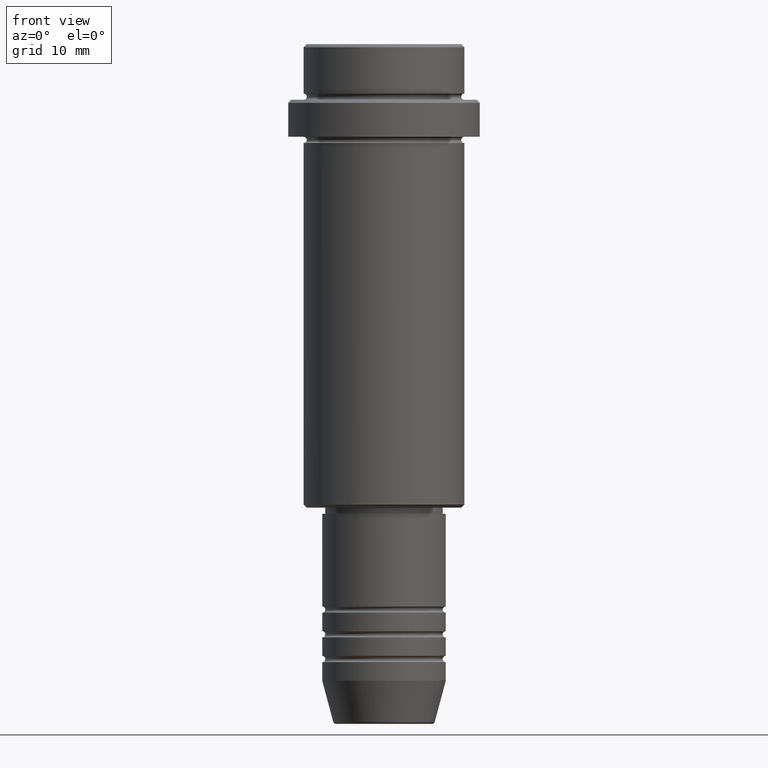
[diagram: clean part render]
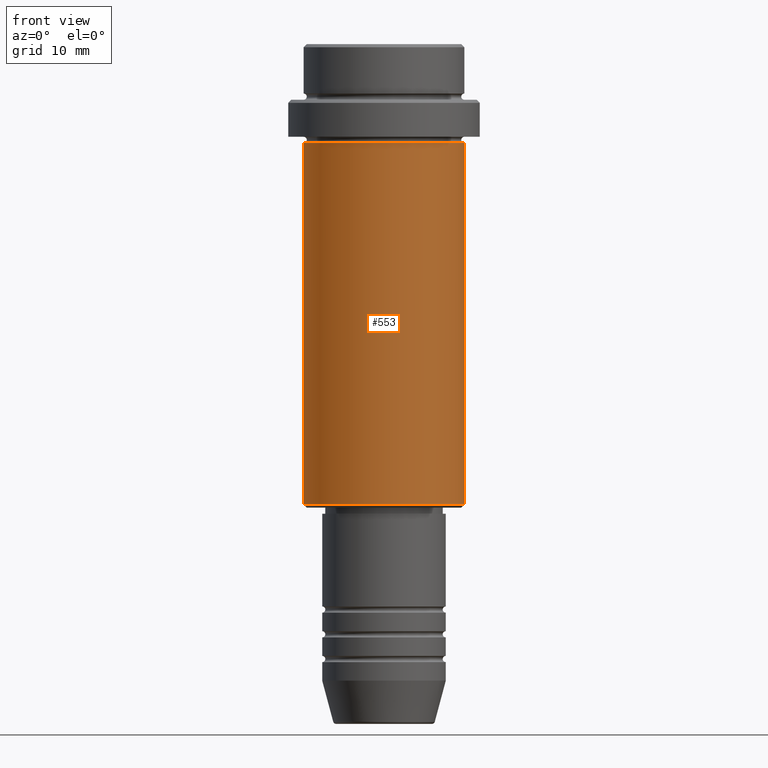
[diagram: same view with one face highlighted and labeled with its STEP entity id]
A machine part, front view. The second image highlights one B-rep face of the part: STEP entity #553.
In plain terms, the highlighted cylindrical surface (partial cylindrical patch) has radius 13 mm, axis along (-0, -0, 1).
Its self-contained STEP definition (entity closure, byte-faithful):
#20 = CIRCLE ( 'NONE', #1321, 13.00000000000000000 ) ;
#46 = CARTESIAN_POINT ( 'NONE',  ( -13.00000000000000000, 1.592040838891559095E-15, -74.50000000000004263 ) ) ;
#78 = DIRECTION ( 'NONE',  ( -1.000000000000000000, 0.000000000000000000, 0.000000000000000000 ) ) ;
#122 = FACE_OUTER_BOUND ( 'NONE', #483, .T. ) ;
#139 = AXIS2_PLACEMENT_3D ( 'NONE', #313, #1391, #78 ) ;
#193 = CARTESIAN_POINT ( 'NONE',  ( -13.00000000000000000, 1.592040838891559095E-15, 0.000000000000000000 ) ) ;
#203 = VERTEX_POINT ( 'NONE', #46 ) ;
#231 = VERTEX_POINT ( 'NONE', #1132 ) ;
#307 = LINE ( 'NONE', #193, #1049 ) ;
#313 = CARTESIAN_POINT ( 'NONE',  ( 0.000000000000000000, 0.000000000000000000, -74.50000000000004263 ) ) ;
#316 = CARTESIAN_POINT ( 'NONE',  ( -13.00000000000000000, 1.592040838891559095E-15, -16.00000000000000000 ) ) ;
#359 = EDGE_CURVE ( 'NONE', #203, #992, #775, .T. ) ;
#389 = EDGE_CURVE ( 'NONE', #203, #1025, #307, .T. ) ;
#429 = CARTESIAN_POINT ( 'NONE',  ( 13.00000000000000000, 0.000000000000000000, 0.000000000000000000 ) ) ;
#432 = ORIENTED_EDGE ( 'NONE', *, *, #359, .T. ) ;
#454 = CARTESIAN_POINT ( 'NONE',  ( 0.000000000000000000, 0.000000000000000000, 0.000000000000000000 ) ) ;
#483 = EDGE_LOOP ( 'NONE', ( #1136, #432, #487, #1126 ) ) ;
#487 = ORIENTED_EDGE ( 'NONE', *, *, #790, .T. ) ;
#495 = AXIS2_PLACEMENT_3D ( 'NONE', #454, #580, #897 ) ;
#530 = DIRECTION ( 'NONE',  ( -0.000000000000000000, -0.000000000000000000, 1.000000000000000000 ) ) ;
#553 = ADVANCED_FACE ( 'NONE', ( #122 ), #1403, .T. ) ;
#580 = DIRECTION ( 'NONE',  ( -0.000000000000000000, -0.000000000000000000, 1.000000000000000000 ) ) ;
#713 = CARTESIAN_POINT ( 'NONE',  ( 0.000000000000000000, 0.000000000000000000, -16.00000000000000000 ) ) ;
#748 = LINE ( 'NONE', #429, #924 ) ;
#775 = CIRCLE ( 'NONE', #139, 13.00000000000000000 ) ;
#790 = EDGE_CURVE ( 'NONE', #992, #231, #748, .T. ) ;
#897 = DIRECTION ( 'NONE',  ( 1.000000000000000000, 0.000000000000000000, 0.000000000000000000 ) ) ;
#917 = DIRECTION ( 'NONE',  ( 1.000000000000000000, 0.000000000000000000, 0.000000000000000000 ) ) ;
#924 = VECTOR ( 'NONE', #1054, 1000.000000000000000 ) ;
#992 = VERTEX_POINT ( 'NONE', #1416 ) ;
#1025 = VERTEX_POINT ( 'NONE', #316 ) ;
#1026 = DIRECTION ( 'NONE',  ( -0.000000000000000000, -0.000000000000000000, 1.000000000000000000 ) ) ;
#1049 = VECTOR ( 'NONE', #530, 1000.000000000000000 ) ;
#1054 = DIRECTION ( 'NONE',  ( -0.000000000000000000, -0.000000000000000000, 1.000000000000000000 ) ) ;
#1126 = ORIENTED_EDGE ( 'NONE', *, *, #1175, .F. ) ;
#1132 = CARTESIAN_POINT ( 'NONE',  ( 13.00000000000000000, 0.000000000000000000, -16.00000000000000000 ) ) ;
#1136 = ORIENTED_EDGE ( 'NONE', *, *, #389, .F. ) ;
#1175 = EDGE_CURVE ( 'NONE', #1025, #231, #20, .T. ) ;
#1321 = AXIS2_PLACEMENT_3D ( 'NONE', #713, #1026, #917 ) ;
#1391 = DIRECTION ( 'NONE',  ( -0.000000000000000000, -0.000000000000000000, 1.000000000000000000 ) ) ;
#1403 = CYLINDRICAL_SURFACE ( 'NONE', #495, 13.00000000000000000 ) ;
#1416 = CARTESIAN_POINT ( 'NONE',  ( 13.00000000000000000, 0.000000000000000000, -74.50000000000004263 ) ) ;